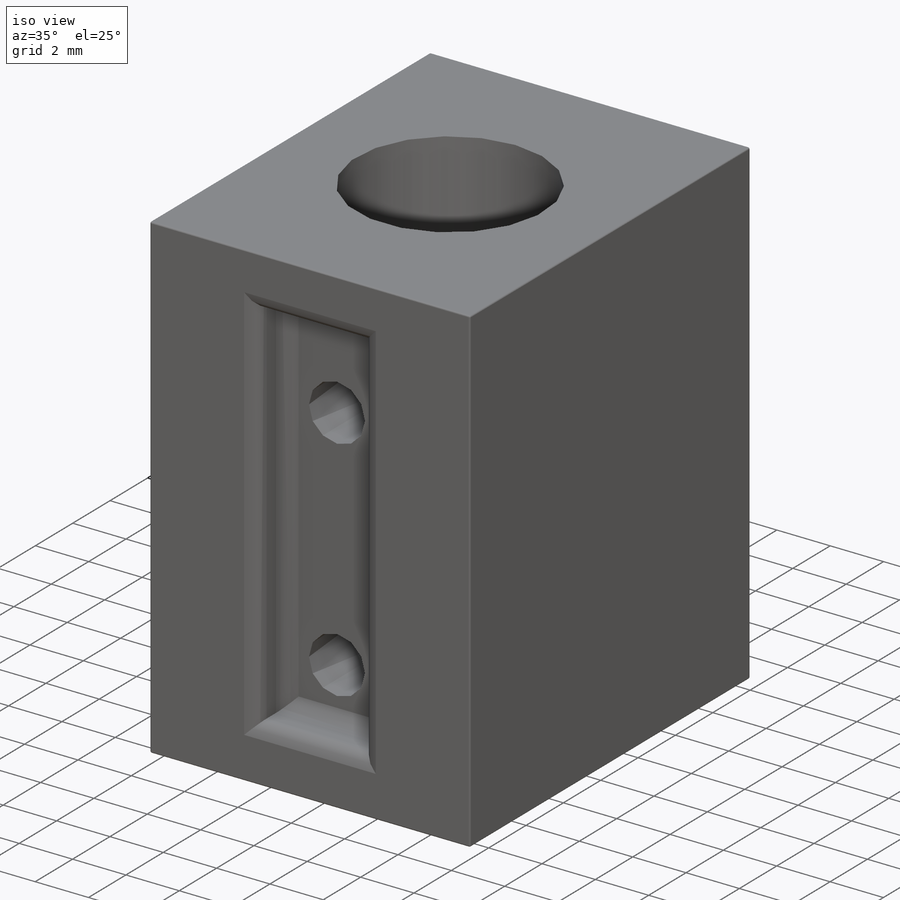
[diagram: iso view]
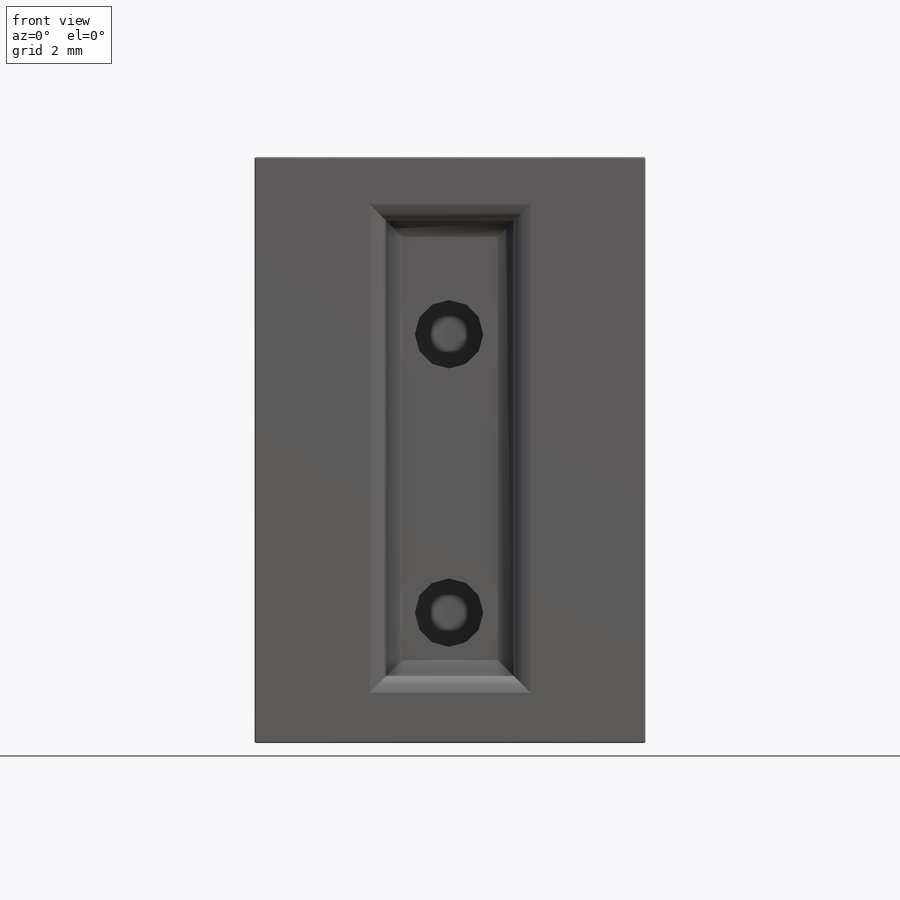
[diagram: front view]
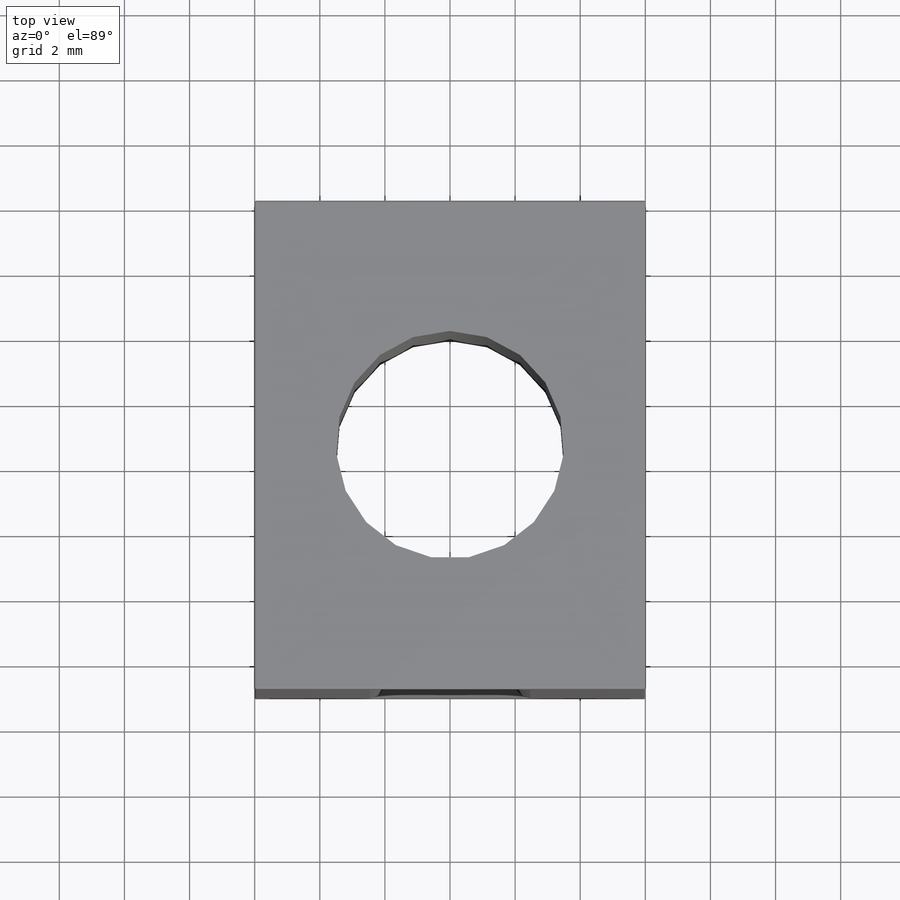
[diagram: top view]
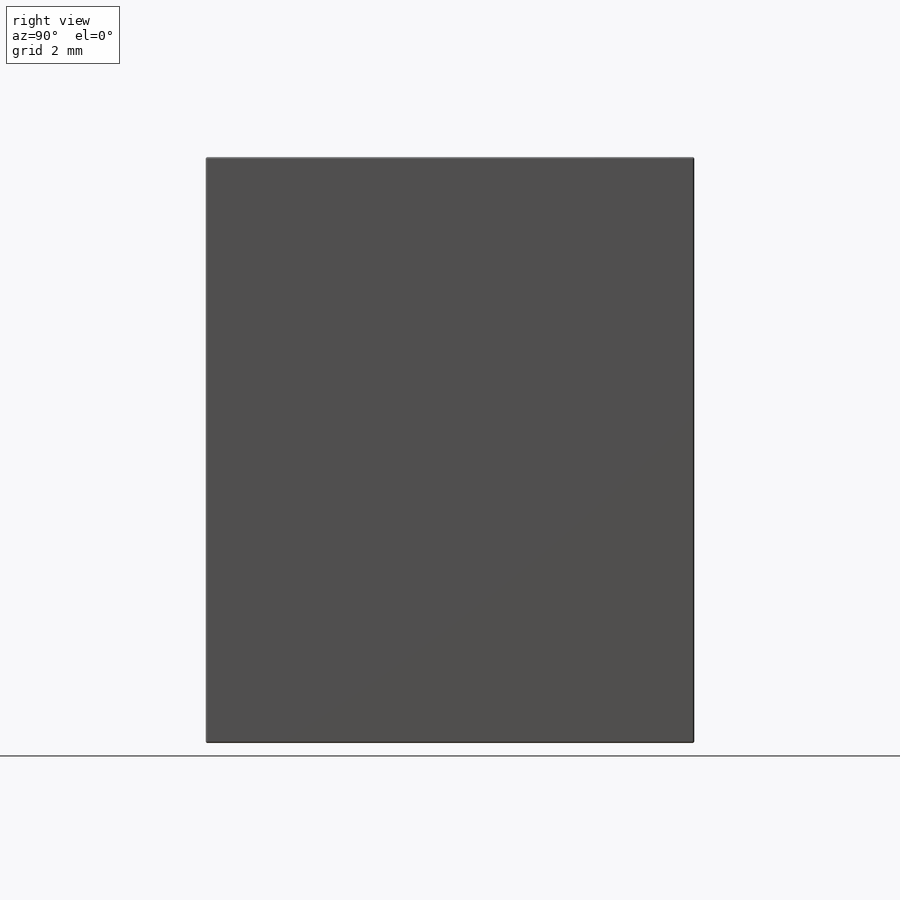
[diagram: right view]
SOLIDWORKS PART (.sldprt)
format: sldprt  version: not decoded by parser v0  size: 406,528 bytes
history: native  units: mm
features: sketch x6, cut_extrude x3, fillet x3, material x1, extrude x1 (+13 scaffold rows collapsed)
feature tree (27):
  scaffold x13  (default folders/planes/origin — collapsed)
  material  "Material <not specified>"
  sketch  "Sketch2"  dims[D1=12.0mm D2=18.0mm]
  extrude  "Boss-Extrude1"  Depth=15mm
  sketch  "Sketch5"  dims[D1=7.0mm]
  cut_extrude  "Cut-Extrude2"  Depth=18mm
  sketch  "Sketch8"  dims[c1.D1=14.0mm c1.D2=~3.937037mm c1.D3=5.535mm c1.D4=1.95mm c1.D5=3.345mm c2.D3=1.95mm]
  cut_extrude  "Cut-Extrude3"  Depth=1.492751mm
  fillet  "Fillet3"  Radius=0.05mm
  sketch  "Sketch10"  dims[D2=2.1mm D3=2.1mm D1=5.45mm D4=4.0mm D5=2.0mm D6=2.0mm]
  cut_extrude  "Cut-Extrude6"  Depth=3mm
  fillet  "Fillet9"  Radius=0.5mm
  fillet  "Fillet10"  Radius=0.5mm
  sketch  "Sketch11"
  sketch  "Sketch12"
decode coverage: 11 of 13 modeling features carry decoded parameters
note: ~ marks probable driven/reference dimensions
note: suppression state not decoded; provenance and decode notes live in map.json
